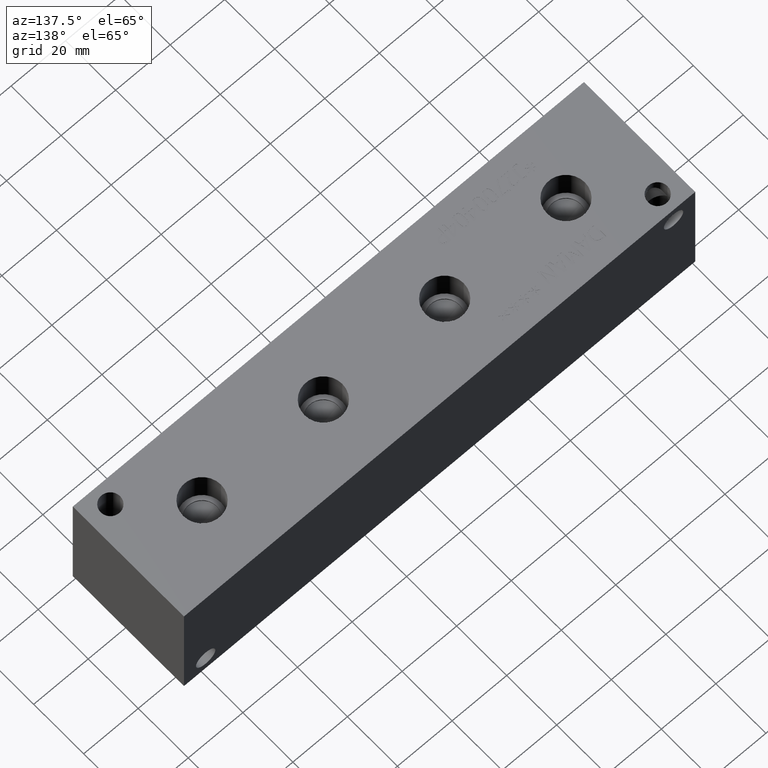
[diagram: clean part render]
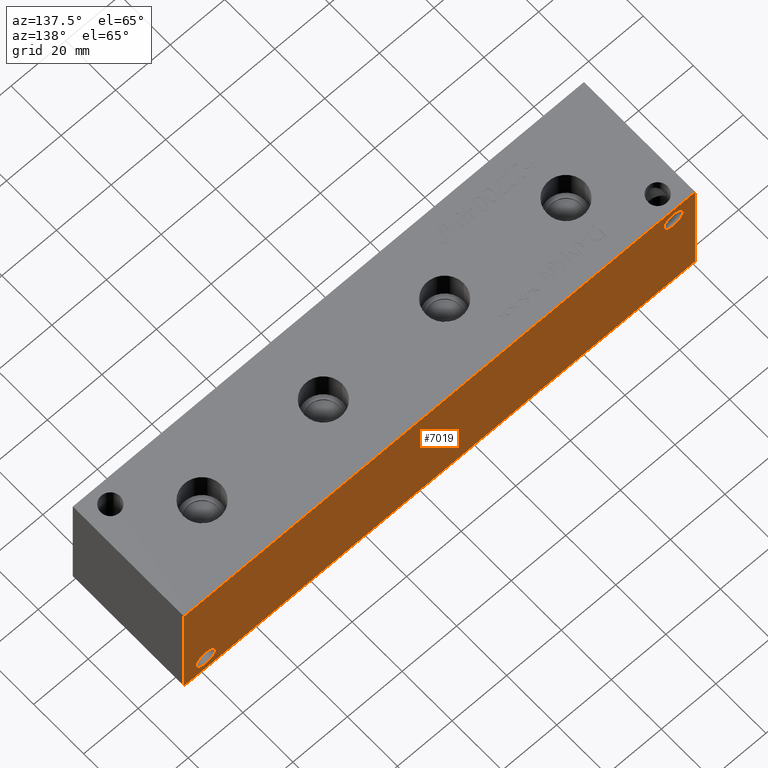
[diagram: same view with one face highlighted and labeled with its STEP entity id]
A machine part, auxiliary view. The second image highlights one B-rep face of the part: STEP entity #7019.
In plain terms, the highlighted planar face has unit normal (0, 1, 0).
Its self-contained STEP definition (entity closure, byte-faithful):
#108=CIRCLE('',#7327,3.5687);
#111=CIRCLE('',#7336,3.5687);
#208=FACE_BOUND('',#1217,.T.);
#209=FACE_BOUND('',#1218,.T.);
#460=PLANE('',#7424);
#815=FACE_OUTER_BOUND('',#1216,.T.);
#1216=EDGE_LOOP('',(#6273,#6274,#6275,#6276));
#1217=EDGE_LOOP('',(#6277));
#1218=EDGE_LOOP('',(#6278));
#1519=LINE('',#10530,#2234);
#1944=LINE('',#11760,#2659);
#1945=LINE('',#11763,#2660);
#1946=LINE('',#11764,#2661);
#2234=VECTOR('',#7885,10.);
#2659=VECTOR('',#8912,10.);
#2660=VECTOR('',#8915,10.);
#2661=VECTOR('',#8916,10.);
#3071=VERTEX_POINT('',#10527);
#3072=VERTEX_POINT('',#10529);
#3383=VERTEX_POINT('',#11564);
#3388=VERTEX_POINT('',#11580);
#3447=VERTEX_POINT('',#11756);
#3449=VERTEX_POINT('',#11762);
#3855=EDGE_CURVE('',#3071,#3072,#1519,.T.);
#4310=EDGE_CURVE('',#3383,#3383,#108,.T.);
#4319=EDGE_CURVE('',#3388,#3388,#111,.T.);
#4400=EDGE_CURVE('',#3447,#3072,#1944,.T.);
#4401=EDGE_CURVE('',#3449,#3447,#1945,.T.);
#4402=EDGE_CURVE('',#3449,#3071,#1946,.T.);
#6273=ORIENTED_EDGE('',*,*,#4401,.T.);
#6274=ORIENTED_EDGE('',*,*,#4400,.T.);
#6275=ORIENTED_EDGE('',*,*,#3855,.F.);
#6276=ORIENTED_EDGE('',*,*,#4402,.F.);
#6277=ORIENTED_EDGE('',*,*,#4310,.T.);
#6278=ORIENTED_EDGE('',*,*,#4319,.T.);
#7019=ADVANCED_FACE('',(#815,#208,#209),#460,.T.);
#7327=AXIS2_PLACEMENT_3D('',#11566,#8686,#8687);
#7336=AXIS2_PLACEMENT_3D('',#11582,#8706,#8707);
#7424=AXIS2_PLACEMENT_3D('',#11761,#8913,#8914);
#7885=DIRECTION('',(-1.,0.,0.));
#8686=DIRECTION('center_axis',(0.,-1.,0.));
#8687=DIRECTION('ref_axis',(1.,0.,0.));
#8706=DIRECTION('center_axis',(0.,-1.,0.));
#8707=DIRECTION('ref_axis',(1.,0.,0.));
#8912=DIRECTION('',(0.,0.,1.));
#8913=DIRECTION('center_axis',(0.,1.,0.));
#8914=DIRECTION('ref_axis',(-1.,0.,0.));
#8915=DIRECTION('',(-1.,0.,0.));
#8916=DIRECTION('',(0.,0.,1.));
#10527=CARTESIAN_POINT('',(187.325,44.45,44.45));
#10529=CARTESIAN_POINT('',(0.,44.45,44.45));
#10530=CARTESIAN_POINT('',(187.325,44.45,44.45));
#11564=CARTESIAN_POINT('',(4.3561,44.45,38.1));
#11566=CARTESIAN_POINT('Origin',(7.9248,44.45,38.1));
#11580=CARTESIAN_POINT('',(175.8061,44.45,6.35));
#11582=CARTESIAN_POINT('Origin',(179.3748,44.45,6.35));
#11756=CARTESIAN_POINT('',(0.,44.45,0.));
#11760=CARTESIAN_POINT('',(0.,44.45,0.));
#11761=CARTESIAN_POINT('Origin',(187.325,44.45,0.));
#11762=CARTESIAN_POINT('',(187.325,44.45,0.));
#11763=CARTESIAN_POINT('',(187.325,44.45,0.));
#11764=CARTESIAN_POINT('',(187.325,44.45,0.));